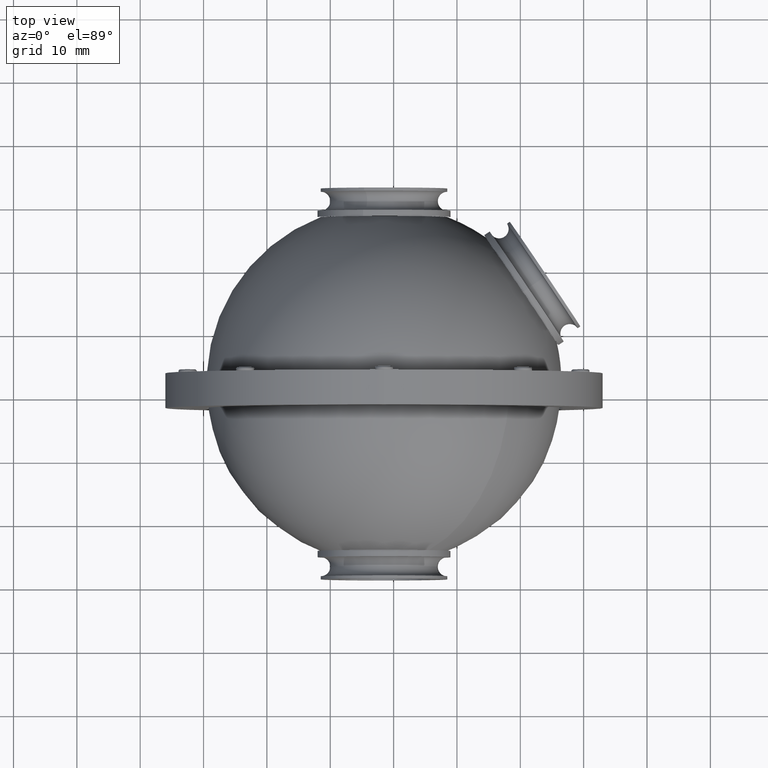
[diagram: clean part render]
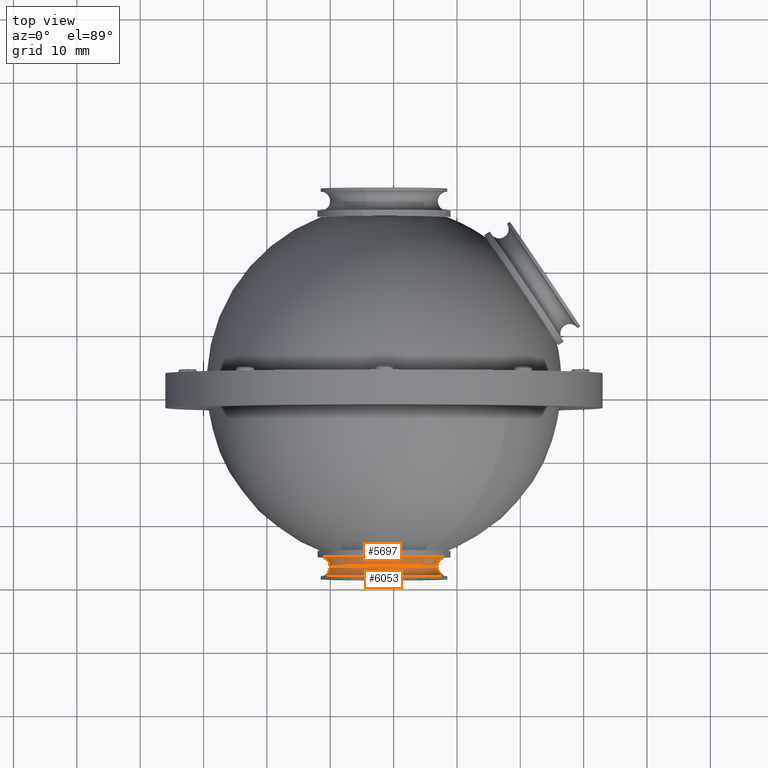
[diagram: same view with one multi-face feature highlighted, each face labeled with its STEP entity id]
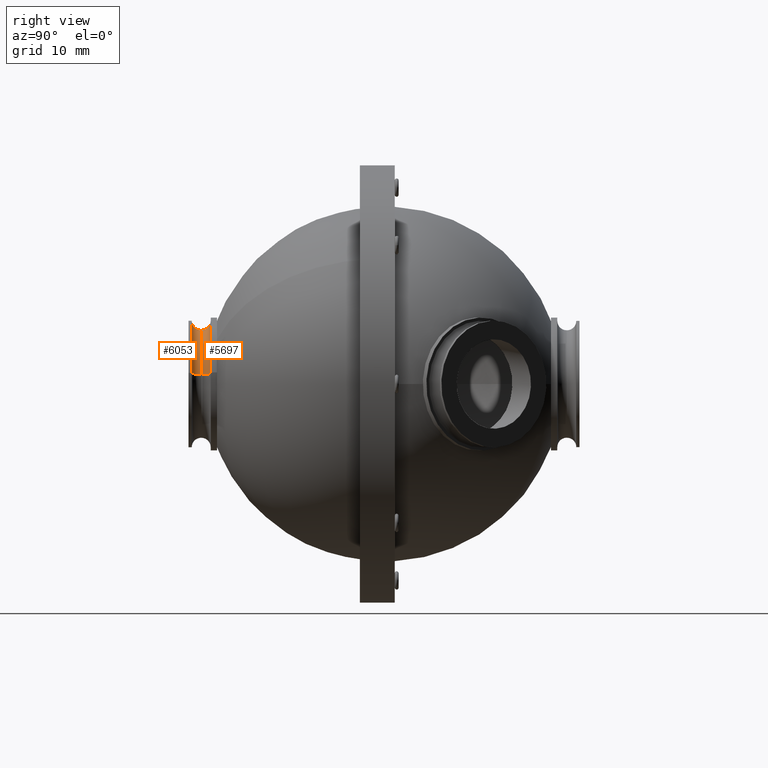
[diagram: same view with one multi-face feature highlighted, each face labeled with its STEP entity id]
A machine part, top view. The highlighted faces form ONE feature: a constant-radius fillet chain: 2 tangent blend faces with common blend radius 1.5 mm. The faces share edges in the B-rep.
A second angle (right view) of the same feature is appended — it is thin or edge-on in the first view.
Their STEP definitions:
[1] entity #5697 (Torus):
#95 = DIRECTION ( 'NONE',  ( -6.492176973796427489E-17, 1.000000000000000000, 6.925509685190237264E-17 ) ) ;
#164 = CIRCLE ( 'NONE', #1211, 1.500000000000002887 ) ;
#496 = DIRECTION ( 'NONE',  ( 0.9844927593900338891, 0.000000000000000000, 0.1754252168549223223 ) ) ;
#655 = CIRCLE ( 'NONE', #2533, 1.500000000000002665 ) ;
#690 = CIRCLE ( 'NONE', #6340, 8.499999999999996447 ) ;
#1069 = VERTEX_POINT ( 'NONE', #3670 ) ;
#1211 = AXIS2_PLACEMENT_3D ( 'NONE', #5466, #2975, #496 ) ;
#1452 = TOROIDAL_SURFACE ( 'NONE', #2808, 10.00000000000000000, 1.500000000000002442 ) ;
#1636 = DIRECTION ( 'NONE',  ( -6.492176973796427489E-17, 1.000000000000000000, 6.925509685190237264E-17 ) ) ;
#2032 = DIRECTION ( 'NONE',  ( -0.9844927593900341112, -5.176592185025925934E-17, -0.1754252168549220725 ) ) ;
#2157 = CARTESIAN_POINT ( 'NONE',  ( 8.484018949608305604, -45.46425954842823103, 1.884329748520025588E-15 ) ) ;
#2289 = EDGE_LOOP ( 'NONE', ( #2408, #5047, #2502, #5395 ) ) ;
#2408 = ORIENTED_EDGE ( 'NONE', *, *, #2722, .T. ) ;
#2502 = ORIENTED_EDGE ( 'NONE', *, *, #3903, .F. ) ;
#2533 = AXIS2_PLACEMENT_3D ( 'NONE', #6087, #2678, #4680 ) ;
#2678 = DIRECTION ( 'NONE',  ( 0.1754252168549221003, 7.957005693644114043E-17, -0.9844927593900342222 ) ) ;
#2693 = EDGE_CURVE ( 'NONE', #4117, #1069, #6411, .T. ) ;
#2722 = EDGE_CURVE ( 'NONE', #4117, #3711, #655, .T. ) ;
#2808 = AXIS2_PLACEMENT_3D ( 'NONE', #3509, #3414, #2032 ) ;
#2975 = DIRECTION ( 'NONE',  ( -0.1754252168549222113, -7.957005693644115275E-17, 0.9844927593900342222 ) ) ;
#3315 = CARTESIAN_POINT ( 'NONE',  ( 0.1158304947930189899, -46.96425954842823813, -1.491114343266835451 ) ) ;
#3414 = DIRECTION ( 'NONE',  ( -6.492176973796427489E-17, 1.000000000000000000, 6.925509685190237264E-17 ) ) ;
#3509 = CARTESIAN_POINT ( 'NONE',  ( 8.484018949608305604, -46.96425954842823813, 1.780447103242172270E-15 ) ) ;
#3670 = CARTESIAN_POINT ( 'NONE',  ( 18.32894654350864627, -45.46425954842823813, 1.754252168549224056 ) ) ;
#3711 = VERTEX_POINT ( 'NONE', #3315 ) ;
#3903 = EDGE_CURVE ( 'NONE', #1069, #4763, #164, .T. ) ;
#4074 = DIRECTION ( 'NONE',  ( 0.000000000000000000, 0.000000000000000000, 1.000000000000000000 ) ) ;
#4080 = DIRECTION ( 'NONE',  ( 0.9844927593900341112, 0.000000000000000000, 0.1754252168549221003 ) ) ;
#4117 = VERTEX_POINT ( 'NONE', #4312 ) ;
#4312 = CARTESIAN_POINT ( 'NONE',  ( -1.360908644292035508, -45.46425954842823813, -1.754252168549219171 ) ) ;
#4334 = EDGE_CURVE ( 'NONE', #3711, #4763, #690, .T. ) ;
#4573 = CARTESIAN_POINT ( 'NONE',  ( 8.484018949608305604, -46.96425954842823813, 1.780447103242172270E-15 ) ) ;
#4680 = DIRECTION ( 'NONE',  ( -0.9844927593900341112, 0.000000000000000000, -0.1754252168549222113 ) ) ;
#4763 = VERTEX_POINT ( 'NONE', #5618 ) ;
#5047 = ORIENTED_EDGE ( 'NONE', *, *, #4334, .T. ) ;
#5048 = AXIS2_PLACEMENT_3D ( 'NONE', #2157, #1636, #4080 ) ;
#5395 = ORIENTED_EDGE ( 'NONE', *, *, #2693, .F. ) ;
#5466 = CARTESIAN_POINT ( 'NONE',  ( 18.32894654350864627, -46.96425954842823813, 1.754252168549223834 ) ) ;
#5618 = CARTESIAN_POINT ( 'NONE',  ( 16.85220740442359144, -46.96425954842823813, 1.491114343266840336 ) ) ;
#5697 = ADVANCED_FACE ( 'NONE', ( #6036 ), #1452, .F. ) ;
#6036 = FACE_OUTER_BOUND ( 'NONE', #2289, .T. ) ;
#6087 = CARTESIAN_POINT ( 'NONE',  ( -1.360908644292035508, -46.96425954842823813, -1.754252168549219171 ) ) ;
#6340 = AXIS2_PLACEMENT_3D ( 'NONE', #4573, #95, #4074 ) ;
#6411 = CIRCLE ( 'NONE', #5048, 10.00000000000000000 ) ;
[2] entity #6053 (Torus):
#95 = DIRECTION ( 'NONE',  ( -6.492176973796427489E-17, 1.000000000000000000, 6.925509685190237264E-17 ) ) ;
#186 = CIRCLE ( 'NONE', #3738, 1.500000000000002665 ) ;
#330 = DIRECTION ( 'NONE',  ( -0.9844927593900341112, 0.000000000000000000, -0.1754252168549220725 ) ) ;
#525 = CARTESIAN_POINT ( 'NONE',  ( 18.32894654350864627, -46.96425954842823813, 1.754252168549223834 ) ) ;
#582 = VERTEX_POINT ( 'NONE', #4932 ) ;
#690 = CIRCLE ( 'NONE', #6340, 8.499999999999996447 ) ;
#880 = AXIS2_PLACEMENT_3D ( 'NONE', #525, #3067, #4013 ) ;
#912 = DIRECTION ( 'NONE',  ( 6.492176973796427489E-17, -1.000000000000000000, -6.925509685190237264E-17 ) ) ;
#928 = CARTESIAN_POINT ( 'NONE',  ( -1.360908644292035508, -46.96425954842823813, -1.754252168549219171 ) ) ;
#967 = CIRCLE ( 'NONE', #3579, 10.00000000000000178 ) ;
#1432 = ORIENTED_EDGE ( 'NONE', *, *, #4334, .F. ) ;
#1803 = ORIENTED_EDGE ( 'NONE', *, *, #5024, .F. ) ;
#1969 = EDGE_LOOP ( 'NONE', ( #1432, #5853, #6455, #1803 ) ) ;
#1975 = TOROIDAL_SURFACE ( 'NONE', #5419, 10.00000000000000000, 1.500000000000002442 ) ;
#2049 = EDGE_CURVE ( 'NONE', #3711, #582, #186, .T. ) ;
#2368 = DIRECTION ( 'NONE',  ( 0.1754252168549221003, 7.957005693644114043E-17, -0.9844927593900342222 ) ) ;
#2747 = EDGE_CURVE ( 'NONE', #3610, #582, #967, .T. ) ;
#2849 = DIRECTION ( 'NONE',  ( -0.9844927593900341112, -5.176592185025925934E-17, -0.1754252168549220725 ) ) ;
#2864 = CIRCLE ( 'NONE', #880, 1.500000000000002887 ) ;
#3067 = DIRECTION ( 'NONE',  ( -0.1754252168549222113, -7.957005693644115275E-17, 0.9844927593900342222 ) ) ;
#3315 = CARTESIAN_POINT ( 'NONE',  ( 0.1158304947930189899, -46.96425954842823813, -1.491114343266835451 ) ) ;
#3344 = CARTESIAN_POINT ( 'NONE',  ( 8.484018949608305604, -46.96425954842823813, 1.780447103242172270E-15 ) ) ;
#3579 = AXIS2_PLACEMENT_3D ( 'NONE', #5364, #912, #330 ) ;
#3610 = VERTEX_POINT ( 'NONE', #4910 ) ;
#3711 = VERTEX_POINT ( 'NONE', #3315 ) ;
#3738 = AXIS2_PLACEMENT_3D ( 'NONE', #928, #2368, #6337 ) ;
#3864 = FACE_OUTER_BOUND ( 'NONE', #1969, .T. ) ;
#4013 = DIRECTION ( 'NONE',  ( 0.9844927593900338891, 0.000000000000000000, 0.1754252168549223223 ) ) ;
#4074 = DIRECTION ( 'NONE',  ( 0.000000000000000000, 0.000000000000000000, 1.000000000000000000 ) ) ;
#4334 = EDGE_CURVE ( 'NONE', #3711, #4763, #690, .T. ) ;
#4573 = CARTESIAN_POINT ( 'NONE',  ( 8.484018949608305604, -46.96425954842823813, 1.780447103242172270E-15 ) ) ;
#4763 = VERTEX_POINT ( 'NONE', #5618 ) ;
#4910 = CARTESIAN_POINT ( 'NONE',  ( 18.32894654350864627, -48.46425954842824524, 1.754252168549223834 ) ) ;
#4932 = CARTESIAN_POINT ( 'NONE',  ( -1.360908644292035508, -48.46425954842824524, -1.754252168549219393 ) ) ;
#5024 = EDGE_CURVE ( 'NONE', #4763, #3610, #2864, .T. ) ;
#5345 = DIRECTION ( 'NONE',  ( -6.492176973796427489E-17, 1.000000000000000000, 6.925509685190237264E-17 ) ) ;
#5364 = CARTESIAN_POINT ( 'NONE',  ( 8.484018949608305604, -48.46425954842824524, 1.676564457964318360E-15 ) ) ;
#5419 = AXIS2_PLACEMENT_3D ( 'NONE', #3344, #5345, #2849 ) ;
#5618 = CARTESIAN_POINT ( 'NONE',  ( 16.85220740442359144, -46.96425954842823813, 1.491114343266840336 ) ) ;
#5853 = ORIENTED_EDGE ( 'NONE', *, *, #2049, .T. ) ;
#6053 = ADVANCED_FACE ( 'NONE', ( #3864 ), #1975, .F. ) ;
#6337 = DIRECTION ( 'NONE',  ( -0.9844927593900341112, 0.000000000000000000, -0.1754252168549222113 ) ) ;
#6340 = AXIS2_PLACEMENT_3D ( 'NONE', #4573, #95, #4074 ) ;
#6455 = ORIENTED_EDGE ( 'NONE', *, *, #2747, .F. ) ;